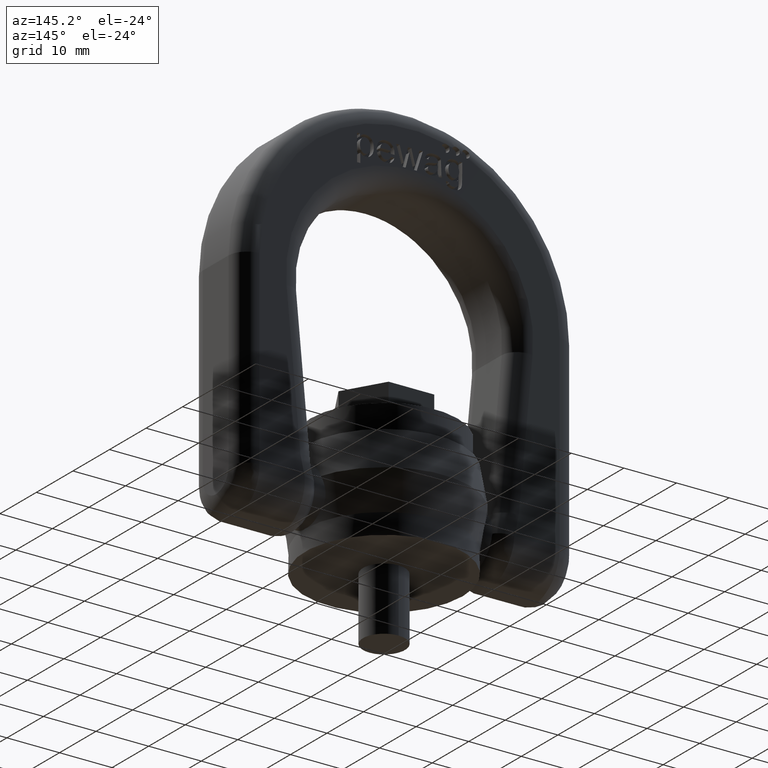
[diagram: clean part render]
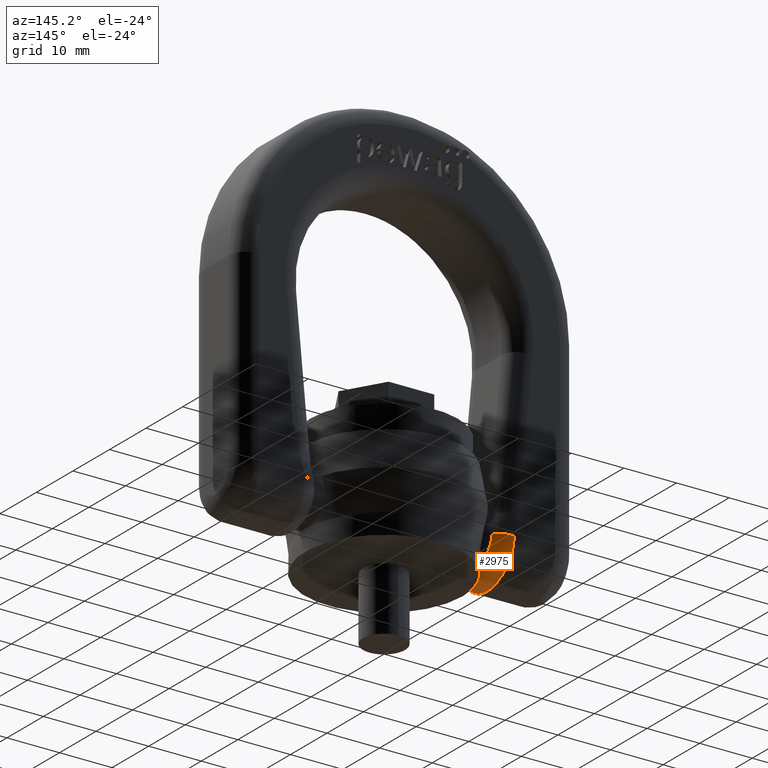
[diagram: same view with one face highlighted and labeled with its STEP entity id]
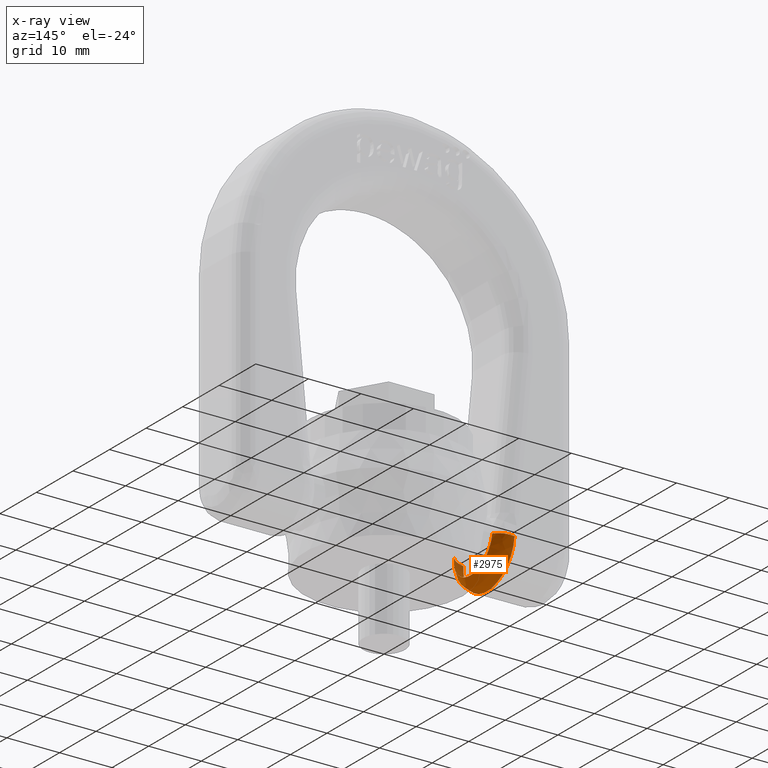
[diagram: x-ray of the same camera — body ghosted, the highlighted face saturated]
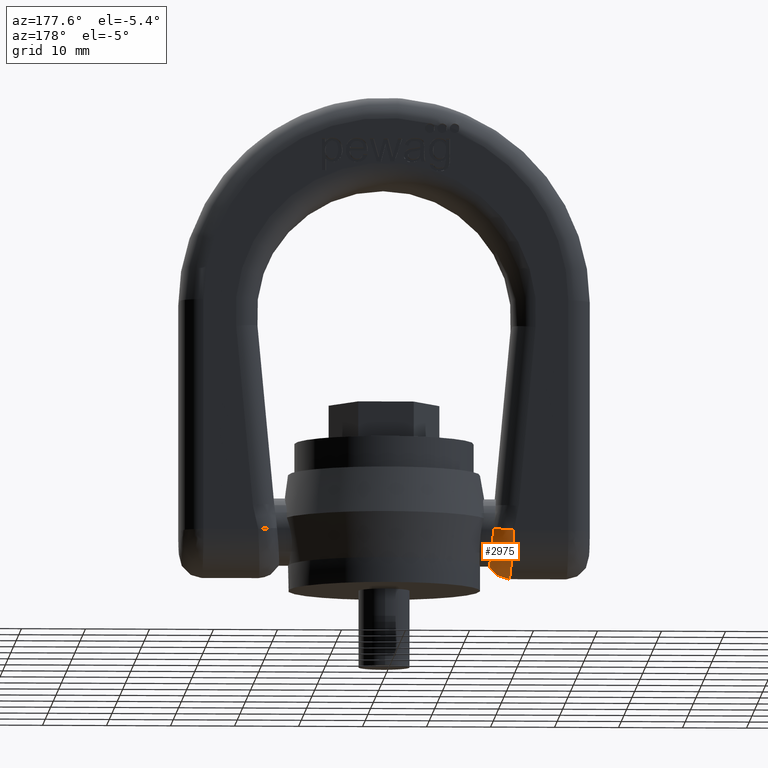
[diagram: same view with one face highlighted and labeled with its STEP entity id]
A machine part, auxiliary view. The second image highlights one B-rep face of the part: STEP entity #2975.
The next image is the same camera in x-ray: the body ghosted, the highlighted face saturated — about 7% of this face is hidden behind the body in this view.
A second angle (auxiliary view) of the same face is appended — the face is thin or edge-on in the first view.
In plain terms, the highlighted face is a freeform B-spline surface patch.
Its self-contained STEP definition (entity closure, byte-faithful):
#218=(
BOUNDED_SURFACE()
B_SPLINE_SURFACE(3,2,((#9632,#9633,#9634),(#9635,#9636,#9637),(#9638,#9639,
#9640),(#9641,#9642,#9643),(#9644,#9645,#9646),(#9647,#9648,#9649),(#9650,
#9651,#9652),(#9653,#9654,#9655),(#9656,#9657,#9658),(#9659,#9660,#9661)),
 .UNSPECIFIED.,.F.,.F.,.F.)
B_SPLINE_SURFACE_WITH_KNOTS((4,2,2,2,4),(3,3),(0.,0.25,0.5,0.75,1.),(0.,
1.),.UNSPECIFIED.)
GEOMETRIC_REPRESENTATION_ITEM()
RATIONAL_B_SPLINE_SURFACE(((1.,0.865907599674841,1.),(1.,0.861596283384974,
1.),(1.,0.857287188159478,1.),(1.,0.851178057780592,1.),(1.,0.849373834158884,
1.),(1.,0.849365210120956,1.),(1.,0.851159549071625,1.),(1.,0.857270387510048,
1.),(1.,0.861550518832101,1.),(1.,0.865907599674839,1.)))
REPRESENTATION_ITEM('')
SURFACE()
);
#317=ELLIPSE('',#5789,5.27286276087095,5.25);
#320=B_SPLINE_CURVE_WITH_KNOTS('',3,(#6735,#6736,#6737,#6738,#6739,#6740,
#6741,#6742,#6743,#6744),.UNSPECIFIED.,.F.,.F.,(4,2,2,2,4),(0.,0.25,0.5,
0.75,1.),.UNSPECIFIED.);
#2621=FACE_OUTER_BOUND('',#3331,.T.);
#2975=ADVANCED_FACE('',(#2621),#218,.T.);
#3331=EDGE_LOOP('',(#4525,#4526,#4527,#4528));
#4525=ORIENTED_EDGE('',*,*,#5550,.T.);
#4526=ORIENTED_EDGE('',*,*,#5000,.F.);
#4527=ORIENTED_EDGE('',*,*,#5552,.F.);
#4528=ORIENTED_EDGE('',*,*,#5535,.F.);
#4585=VERTEX_POINT('',#6733);
#4587=VERTEX_POINT('',#6745);
#4949=VERTEX_POINT('',#9504);
#4950=VERTEX_POINT('',#9506);
#5000=EDGE_CURVE('',#4585,#4587,#320,.T.);
#5535=EDGE_CURVE('',#4949,#4950,#317,.T.);
#5550=EDGE_CURVE('',#4949,#4587,#5608,.T.);
#5552=EDGE_CURVE('',#4950,#4585,#5610,.T.);
#5608=CIRCLE('',#5814,3.5);
#5610=CIRCLE('',#5816,3.5);
#5789=AXIS2_PLACEMENT_3D('',#9505,#6544,#6545);
#5814=AXIS2_PLACEMENT_3D('',#9581,#6594,#6595);
#5816=AXIS2_PLACEMENT_3D('',#9631,#6598,#6599);
#6544=DIRECTION('',(0.995664070561325,0.,0.0930218178345941));
#6545=DIRECTION('',(-0.0930218178345941,0.,0.995664070561325));
#6594=DIRECTION('',(0.106352097833927,0.,-0.994328532873478));
#6595=DIRECTION('',(-0.994328532873478,0.,-0.106352097833928));
#6598=DIRECTION('',(-0.106352097833928,-1.18697674746299E-15,0.994328532873478));
#6599=DIRECTION('',(-0.994328532873478,0.,-0.106352097833928));
#6733=CARTESIAN_POINT('',(-19.950753113985,7.00000000000005,8.95000000000002));
#6735=CARTESIAN_POINT('',(-19.950753113985,6.99999999999999,8.95000000000003));
#6736=CARTESIAN_POINT('',(-19.8519540217033,6.99999999999999,7.10257510705455));
#6737=CARTESIAN_POINT('',(-19.7541847453004,6.24161316817408,5.29206410229056));
#6738=CARTESIAN_POINT('',(-19.6137898898043,3.65767437544527,2.70823357245032));
#6739=CARTESIAN_POINT('',(-19.572150091763,1.84349047945092,1.94951405894923));
#6740=CARTESIAN_POINT('',(-19.572203324973,-1.84717901119788,1.95048642695327));
#6741=CARTESIAN_POINT('',(-19.6139277122954,-3.66041617913441,2.71076825953281));
#6742=CARTESIAN_POINT('',(-19.7540900984752,-6.23966594061746,5.29032402182644));
#6743=CARTESIAN_POINT('',(-19.8519540881459,-6.99999999999994,7.10257634945074));
#6744=CARTESIAN_POINT('',(-19.950753113985,-6.99999999999994,8.95000000000003));
#6745=CARTESIAN_POINT('',(-19.950753113985,-7.,8.95000000000002));
#9504=CARTESIAN_POINT('',(-16.9360354716899,-5.24857179822246,9.27245031197939));
#9505=CARTESIAN_POINT('',(-16.9245953173733,0.,9.15));
#9506=CARTESIAN_POINT('',(-16.9360354716899,5.24857179822246,9.27245031197939));
#9581=CARTESIAN_POINT('',(-19.950753113985,-3.5,8.95000000000002));
#9631=CARTESIAN_POINT('',(-19.950753113985,3.49999999999999,8.95000000000003));
#9632=CARTESIAN_POINT('',(-19.950753113985,-6.99999999999994,8.95000000000003));
#9633=CARTESIAN_POINT('',(-17.9403944576347,-6.99999999999994,9.16502536981777));
#9634=CARTESIAN_POINT('',(-16.9360354716899,-5.24857179822246,9.27245031197939));
#9635=CARTESIAN_POINT('',(-19.8531538536046,-6.99999999999994,7.12501052883186));
#9636=CARTESIAN_POINT('',(-17.8024281121089,-7.05625948179518,7.33897498153621));
#9637=CARTESIAN_POINT('',(-16.8088167896793,-5.28034036390214,7.91075827202106));
#9638=CARTESIAN_POINT('',(-19.754834671299,-6.24788895544683,5.30407542852462));
#9639=CARTESIAN_POINT('',(-17.6619303134069,-6.35621767550083,5.47308435476616));
#9640=CARTESIAN_POINT('',(-16.6787551465471,-4.75103883647963,6.51863638339297));
#9641=CARTESIAN_POINT('',(-19.6143319244412,-3.67328829575371,2.71815954338036));
#9642=CARTESIAN_POINT('',(-17.4588453002168,-3.78656072772783,2.7712935929706));
#9643=CARTESIAN_POINT('',(-16.4912558358879,-2.82539759892242,4.51172738497121));
#9644=CARTESIAN_POINT('',(-19.5722770990031,-1.8570008514648,1.95183400927507));
#9645=CARTESIAN_POINT('',(-17.3974217980939,-1.92016464720805,1.95195876971793));
#9646=CARTESIAN_POINT('',(-16.4342396769205,-1.43084390163596,3.90145177220441));
#9647=CARTESIAN_POINT('',(-19.5720766663205,1.84314835906609,1.94817284399621));
#9648=CARTESIAN_POINT('',(-17.3971284568202,1.9058603285732,1.94804852998708));
#9649=CARTESIAN_POINT('',(-16.4339689062468,1.42017037130585,3.89855365276126));
#9650=CARTESIAN_POINT('',(-19.613903920944,3.66157968708346,2.71031632530286));
#9651=CARTESIAN_POINT('',(-17.4582220178628,3.77466863521113,2.76299157626859));
#9652=CARTESIAN_POINT('',(-16.4906808314658,2.81652535952455,4.50557280133981));
#9653=CARTESIAN_POINT('',(-19.7544505880728,6.24469446746718,5.29697260164543));
#9654=CARTESIAN_POINT('',(-17.6613793051207,6.35319989014953,5.46576378207689));
#9655=CARTESIAN_POINT('',(-16.6782464084244,4.7487638244931,6.51319106993963));
#9656=CARTESIAN_POINT('',(-19.8521186211869,6.99999999999999,7.10565292065585));
#9657=CARTESIAN_POINT('',(-17.8009465817269,7.0568636092747,7.31936622033218));
#9658=CARTESIAN_POINT('',(-16.8074593988227,5.28067932235833,7.89622938745801));
#9659=CARTESIAN_POINT('',(-19.950753113985,6.99999999999999,8.95000000000003));
#9660=CARTESIAN_POINT('',(-17.9403944576347,6.99999999999998,9.16502536981778));
#9661=CARTESIAN_POINT('',(-16.9360354716899,5.24857179822246,9.27245031197939));